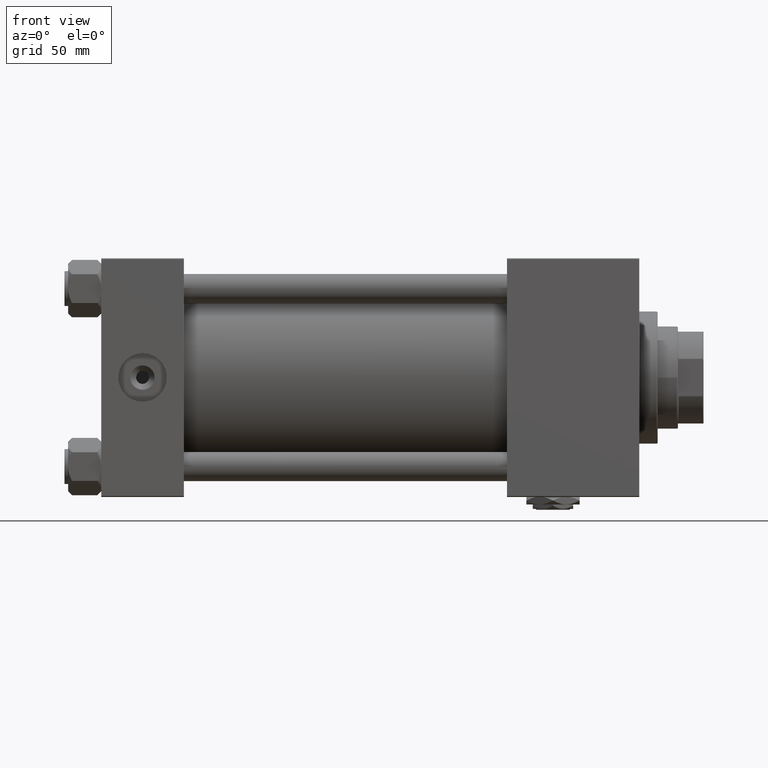
[diagram: clean part render]
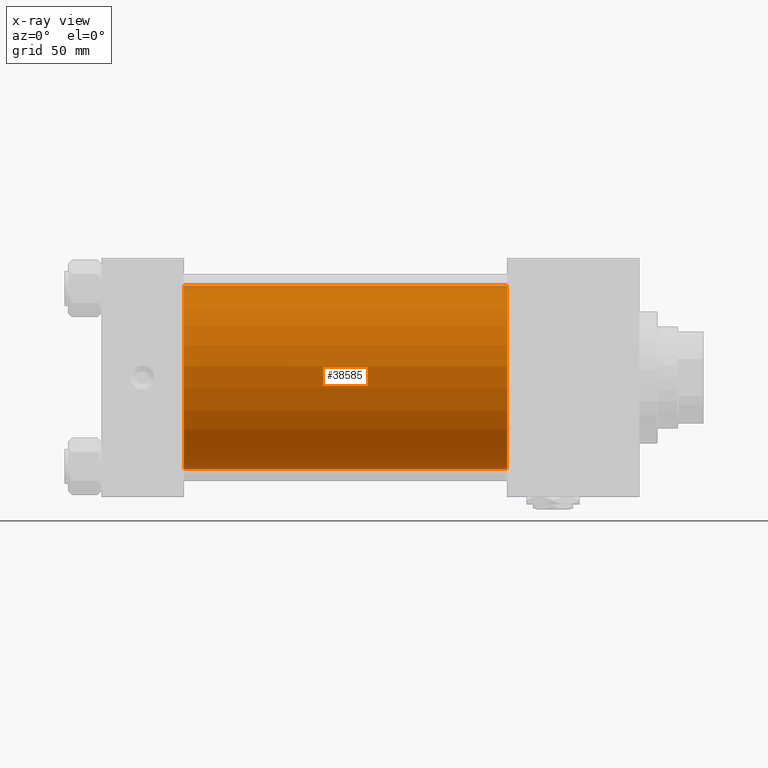
[diagram: x-ray — body ghosted, one internal face saturated and labeled with its STEP entity id]
A machine part, front view, then the same camera in x-ray: the body is ghosted and one INTERNAL B-rep face — a face not visible from any outside direction — is saturated and labeled: STEP entity #38585.
In plain terms, the highlighted cylindrical surface (partial cylindrical patch) has radius 50 mm, axis along (-1, -0, -0).
Its self-contained STEP definition (entity closure, byte-faithful):
#4512 = CARTESIAN_POINT ( 'NONE',  ( 220.9999999999999716, -2.602085213965210642E-15, 0.000000000000000000 ) ) ;
#5032 = DIRECTION ( 'NONE',  ( -1.000000000000000000, -0.000000000000000000, -0.000000000000000000 ) ) ;
#5498 = EDGE_CURVE ( 'NONE', #41960, #37897, #16061, .T. ) ;
#8791 = ORIENTED_EDGE ( 'NONE', *, *, #17378, .F. ) ;
#8792 = CYLINDRICAL_SURFACE ( 'NONE', #14540, 50.00000000000000000 ) ;
#9210 = CARTESIAN_POINT ( 'NONE',  ( 45.00000000000000000, -2.602085213965210642E-15, 50.00000000000000000 ) ) ;
#9388 = VERTEX_POINT ( 'NONE', #9210 ) ;
#10346 = CARTESIAN_POINT ( 'NONE',  ( 45.00000000000000000, -2.602085213965210642E-15, 0.000000000000000000 ) ) ;
#11168 = LINE ( 'NONE', #36585, #52205 ) ;
#13986 = CARTESIAN_POINT ( 'NONE',  ( 220.9999999999999716, -2.602085213965210642E-15, 0.000000000000000000 ) ) ;
#14526 = DIRECTION ( 'NONE',  ( 0.000000000000000000, 0.000000000000000000, -1.000000000000000000 ) ) ;
#14540 = AXIS2_PLACEMENT_3D ( 'NONE', #4512, #5032, #36910 ) ;
#15766 = ORIENTED_EDGE ( 'NONE', *, *, #21096, .T. ) ;
#16061 = LINE ( 'NONE', #27625, #41109 ) ;
#16889 = ORIENTED_EDGE ( 'NONE', *, *, #5498, .T. ) ;
#17378 = EDGE_CURVE ( 'NONE', #9388, #37897, #19164, .T. ) ;
#19164 = CIRCLE ( 'NONE', #23448, 50.00000000000000000 ) ;
#21096 = EDGE_CURVE ( 'NONE', #35954, #41960, #35577, .T. ) ;
#23103 = ORIENTED_EDGE ( 'NONE', *, *, #43008, .F. ) ;
#23206 = CARTESIAN_POINT ( 'NONE',  ( 45.00000000000000000, 3.521148781771555838E-15, -50.00000000000000000 ) ) ;
#23448 = AXIS2_PLACEMENT_3D ( 'NONE', #10346, #42996, #30156 ) ;
#24574 = FACE_OUTER_BOUND ( 'NONE', #30047, .T. ) ;
#27625 = CARTESIAN_POINT ( 'NONE',  ( 220.9999999999999716, 3.521148781771555838E-15, -50.00000000000000000 ) ) ;
#28712 = AXIS2_PLACEMENT_3D ( 'NONE', #13986, #47742, #14526 ) ;
#30047 = EDGE_LOOP ( 'NONE', ( #15766, #16889, #8791, #23103 ) ) ;
#30156 = DIRECTION ( 'NONE',  ( 0.000000000000000000, 0.000000000000000000, -1.000000000000000000 ) ) ;
#33706 = CARTESIAN_POINT ( 'NONE',  ( 220.9999999999999716, -2.602085213965210642E-15, 50.00000000000000000 ) ) ;
#35577 = CIRCLE ( 'NONE', #28712, 50.00000000000000000 ) ;
#35954 = VERTEX_POINT ( 'NONE', #33706 ) ;
#36585 = CARTESIAN_POINT ( 'NONE',  ( 220.9999999999999716, -2.602085213965210642E-15, 50.00000000000000000 ) ) ;
#36910 = DIRECTION ( 'NONE',  ( 0.000000000000000000, 0.000000000000000000, 1.000000000000000000 ) ) ;
#37897 = VERTEX_POINT ( 'NONE', #23206 ) ;
#38585 = ADVANCED_FACE ( 'NONE', ( #24574 ), #8792, .F. ) ;
#41109 = VECTOR ( 'NONE', #51994, 1000.000000000000000 ) ;
#41960 = VERTEX_POINT ( 'NONE', #47242 ) ;
#42996 = DIRECTION ( 'NONE',  ( 1.000000000000000000, 0.000000000000000000, 0.000000000000000000 ) ) ;
#43008 = EDGE_CURVE ( 'NONE', #35954, #9388, #11168, .T. ) ;
#47242 = CARTESIAN_POINT ( 'NONE',  ( 220.9999999999999716, 3.521148781771555838E-15, -50.00000000000000000 ) ) ;
#47742 = DIRECTION ( 'NONE',  ( 1.000000000000000000, 0.000000000000000000, 0.000000000000000000 ) ) ;
#51994 = DIRECTION ( 'NONE',  ( -1.000000000000000000, -0.000000000000000000, -0.000000000000000000 ) ) ;
#52205 = VECTOR ( 'NONE', #52646, 1000.000000000000000 ) ;
#52646 = DIRECTION ( 'NONE',  ( -1.000000000000000000, -0.000000000000000000, -0.000000000000000000 ) ) ;